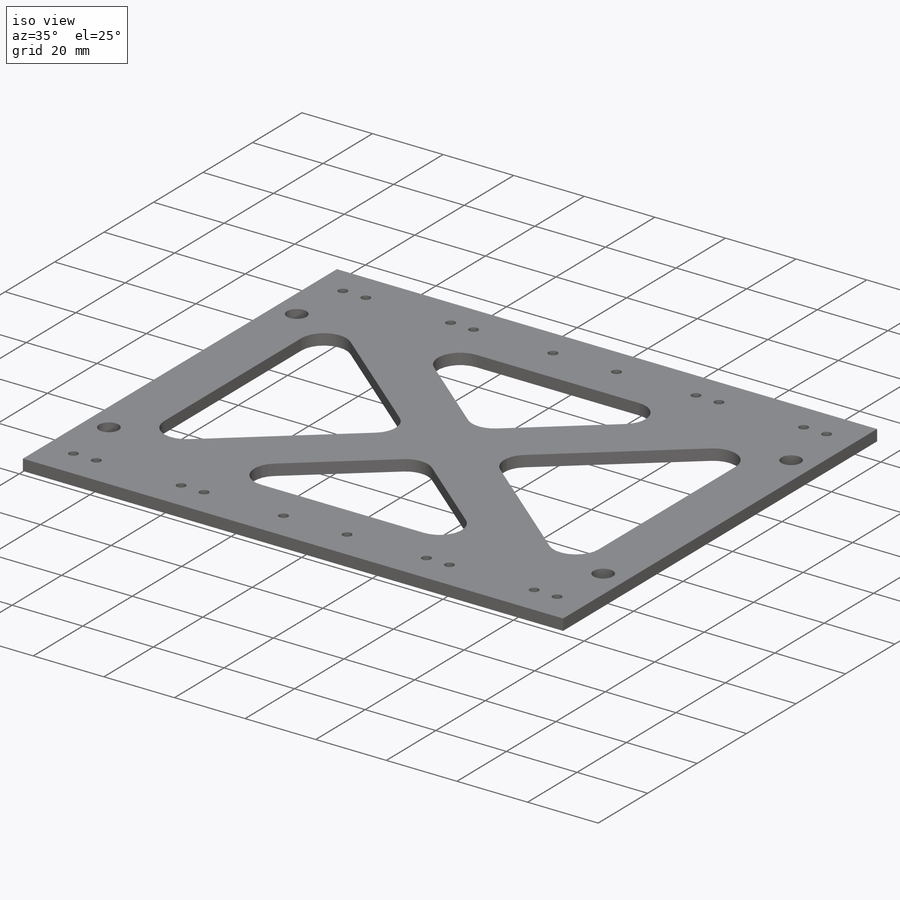
[diagram: iso view]
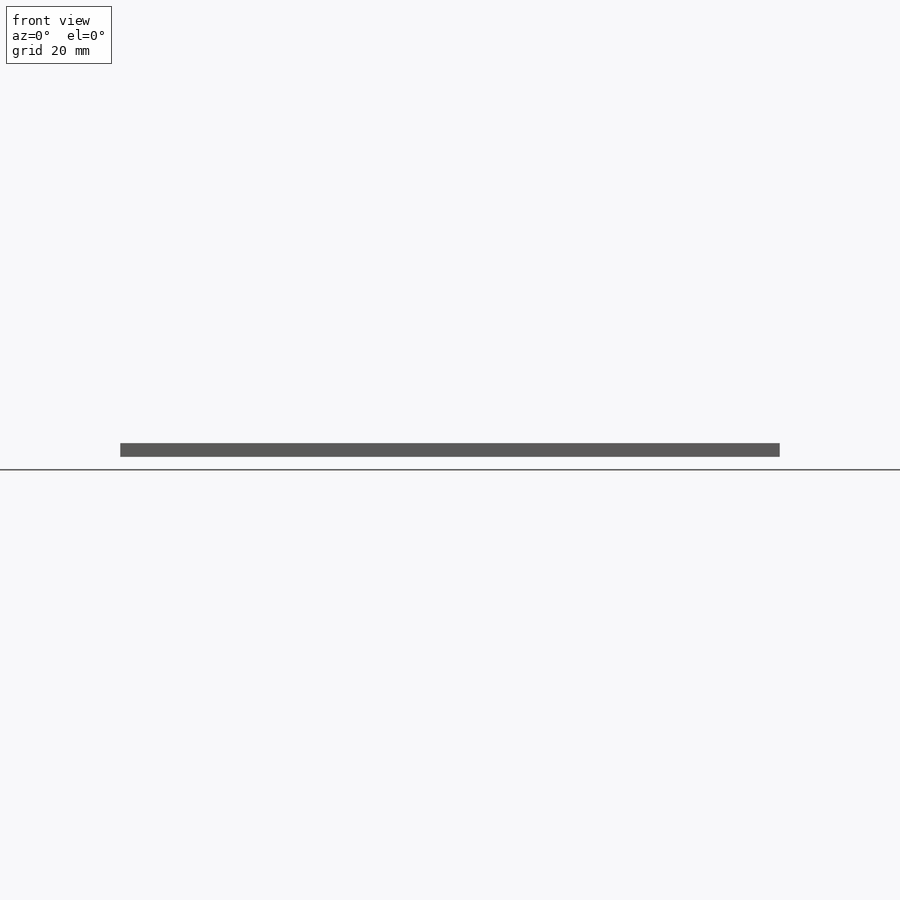
[diagram: front view]
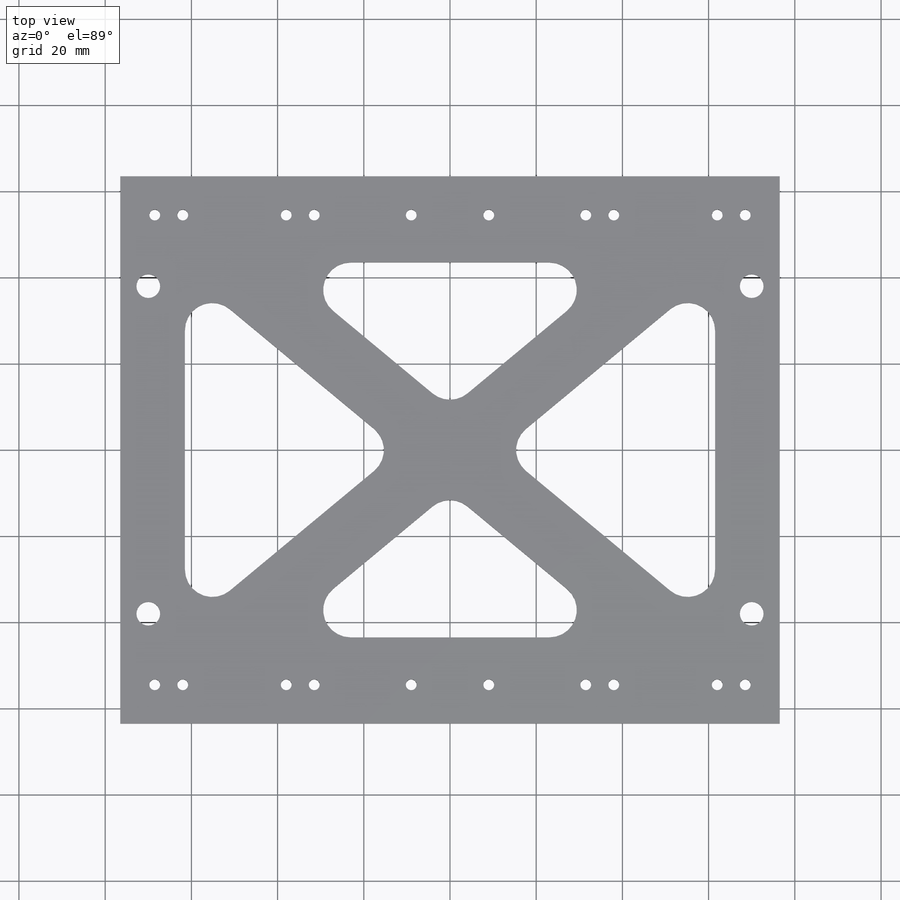
[diagram: top view]
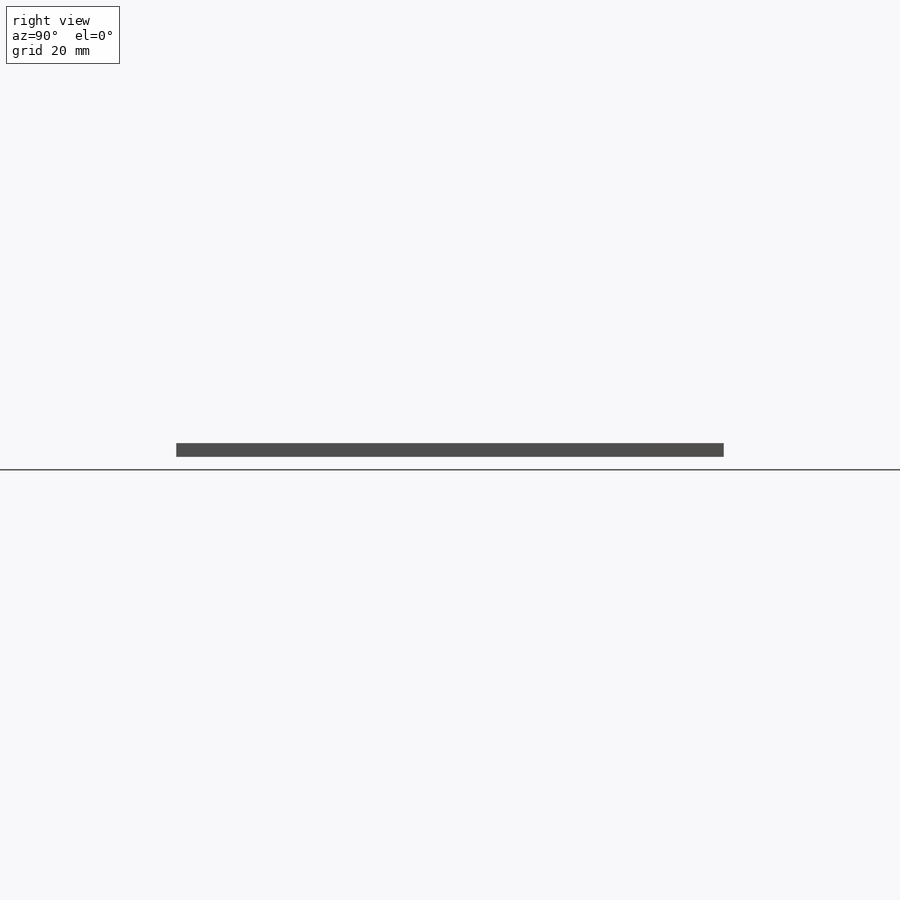
[diagram: right view]
SOLIDWORKS PART (.sldprt)
format: sldprt  version: not decoded by parser v0  size: 465,408 bytes
history: native  units: mm
features: thread x20, sketch x5, cut_extrude x2, material x1, extrude x1, hole x1 (+11 scaffold rows collapsed)
feature tree (41):
  scaffold x11  (default folders/planes/origin — collapsed)
  material  "6061-T6 (SS)"
  sketch  "Sketch1"  dims[D3=6.35mm D1=153.0mm D2=127.0mm]
  extrude  "Boss-Extrude1"  Depth=3.175mm
  hole  "M3x0.5 Tapped Hole1"  Diameter=2.5mm Depth=3.175mm
  sketch  "Sketch3"  dims[c1.D1=209.0mm c1.D2=209.0mm c1.D3=18.0mm c1.D4=115.0mm c1.D5=24.0mm c1.D6=100.0mm c1.D7=50.0mm c1.D8=45.5mm c1.D9=45.5mm c1.D10=105.0mm c1.D11=105.0mm c2.D1=9.0mm c2.D2=37.0mm]
  sketch  "Sketch2"  dims[hole-wizard template sketch: 61 standard entries collapsed; hole parameters above]
  thread  "Hole Thread5"  Diameter=3mm  [1 undecoded]
  thread  "Hole Thread6"  Diameter=3mm  [1 undecoded]
  thread  "Hole Thread7"  Diameter=3mm  [1 undecoded]
  thread  "Hole Thread8"  Diameter=3mm  [1 undecoded]
  thread  "Hole Thread9"  Diameter=3mm  [1 undecoded]
  thread  "Hole Thread10"  Diameter=3mm  [1 undecoded]
  thread  "Hole Thread11"  Diameter=3mm  [1 undecoded]
  thread  "Hole Thread12"  Diameter=3mm  [1 undecoded]
  thread  "Hole Thread13"  Diameter=3mm  [1 undecoded]
  thread  "Hole Thread14"  Diameter=3mm  [1 undecoded]
  thread  "Hole Thread15"  Diameter=3mm  [1 undecoded]
  thread  "Hole Thread16"  Diameter=3mm  [1 undecoded]
  thread  "Hole Thread17"  Diameter=3mm  [1 undecoded]
  thread  "Hole Thread18"  Diameter=3mm  [1 undecoded]
  thread  "Hole Thread19"  Diameter=3mm  [1 undecoded]
  thread  "Hole Thread20"  Diameter=3mm  [1 undecoded]
  thread  "Hole Thread21"  Diameter=3mm  [1 undecoded]
  thread  "Hole Thread22"  Diameter=3mm  [1 undecoded]
  thread  "Hole Thread23"  Diameter=3mm  [1 undecoded]
  thread  "Hole Thread24"  Diameter=3mm  [1 undecoded]
  sketch  "Sketch4"  dims[c1.D2=2.5mm c1.D4=5.5mm c1.D1=4.0mm c2.D2=5.5mm c2.D3=8.0mm c3.D2=38.0mm c3.D3=70.0mm c3.D5=~95.854056mm]
  cut_extrude  "Cut-Extrude1"  [1 undecoded]
  sketch  "Sketch5"  dims[c1.D9=6.35mm c1.D1=15.0mm c1.D2=20.0mm c1.D3=15.0mm c1.D4=20.0mm c1.D5=7.5mm c1.D6=15.0mm c1.D7=7.5mm c1.D8=15.0mm c2.D4=20.0mm]
  cut_extrude  "Cut-Extrude2"  [1 undecoded]
decode coverage: 27 of 29 modeling features carry decoded parameters
note: ~ marks probable driven/reference dimensions
note: 22 parameter values undecoded
note: suppression state not decoded; provenance and decode notes live in map.json
